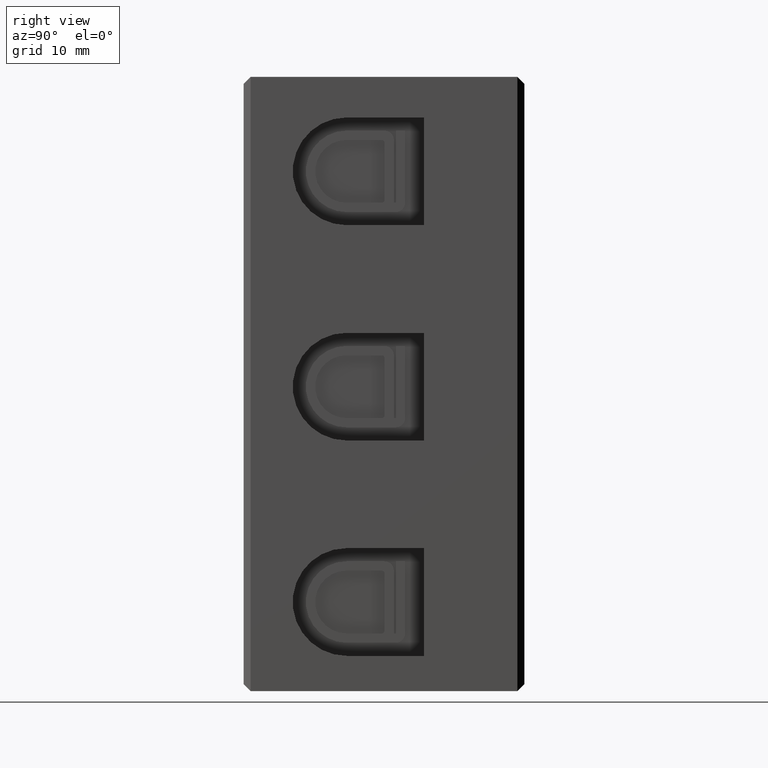
[diagram: clean part render]
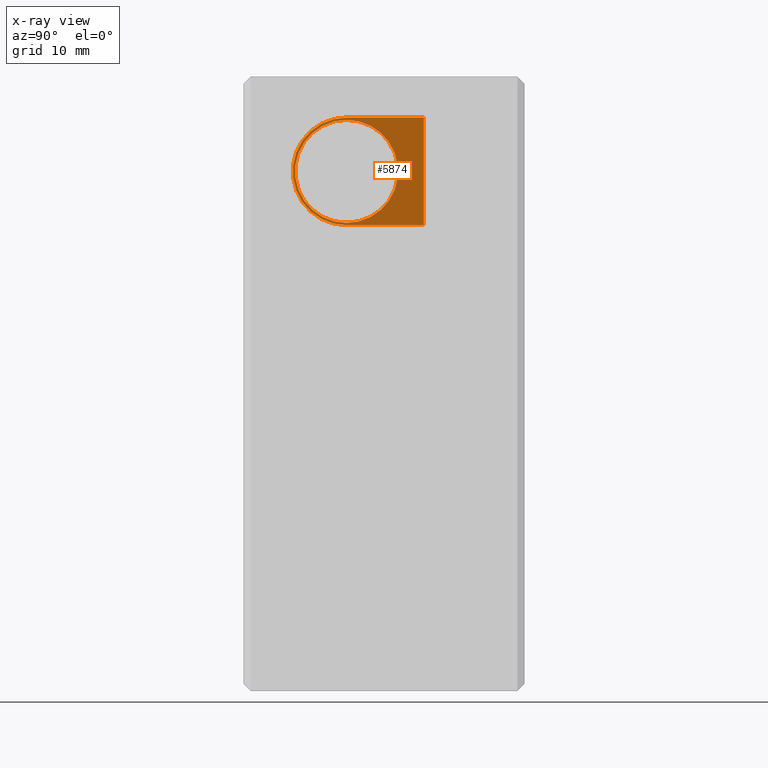
[diagram: x-ray — body ghosted, one internal face saturated and labeled with its STEP entity id]
A machine part, right view, then the same camera in x-ray: the body is ghosted and one INTERNAL B-rep face — a face not visible from any outside direction — is saturated and labeled: STEP entity #5874.
In plain terms, the highlighted planar face has unit normal (-1, 0, 0).
Its self-contained STEP definition (entity closure, byte-faithful):
#177 = DIRECTION ( 'NONE',  ( 1.577021341797097800E-016, 0.0000000000000000000, 1.000000000000000000 ) ) ;
#199 = CARTESIAN_POINT ( 'NONE',  ( 3.000000000000007100, 11.00000000000000000, 55.50000000000000000 ) ) ;
#203 = DIRECTION ( 'NONE',  ( -1.000000000000000000, 0.0000000000000000000, 1.224646799147353200E-016 ) ) ;
#1084 = FACE_BOUND ( 'NONE', #8514, .T. ) ;
#1085 = CARTESIAN_POINT ( 'NONE',  ( 3.000000000000007100, 11.00000000000000000, 55.50000000000000000 ) ) ;
#1091 = DIRECTION ( 'NONE',  ( 1.224646799147353200E-016, 0.0000000000000000000, 1.000000000000000000 ) ) ;
#1108 = FACE_OUTER_BOUND ( 'NONE', #8496, .T. ) ;
#1109 = DIRECTION ( 'NONE',  ( -1.000000000000000000, 0.0000000000000000000, 1.224646799147353200E-016 ) ) ;
#1121 = PLANE ( 'NONE',  #2641 ) ;
#2064 = DIRECTION ( 'NONE',  ( 1.577021341797097800E-016, 0.0000000000000000000, 1.000000000000000000 ) ) ;
#2089 = CARTESIAN_POINT ( 'NONE',  ( 3.000000000000007100, 11.00000000000000000, 55.50000000000000000 ) ) ;
#2107 = DIRECTION ( 'NONE',  ( -1.000000000000000000, 0.0000000000000000000, 1.224646799147353200E-016 ) ) ;
#2641 = AXIS2_PLACEMENT_3D ( 'NONE', #1085, #1109, #1091 ) ;
#2854 = CIRCLE ( 'NONE', #2859, 5.499999999999998200 ) ;
#2859 = AXIS2_PLACEMENT_3D ( 'NONE', #2089, #2107, #2064 ) ;
#3287 = ORIENTED_EDGE ( 'NONE', *, *, #7537, .T. ) ;
#3288 = ORIENTED_EDGE ( 'NONE', *, *, #6073, .T. ) ;
#3310 = ORIENTED_EDGE ( 'NONE', *, *, #7478, .F. ) ;
#3323 = ORIENTED_EDGE ( 'NONE', *, *, #7473, .F. ) ;
#3333 = ORIENTED_EDGE ( 'NONE', *, *, #7452, .F. ) ;
#3366 = ORIENTED_EDGE ( 'NONE', *, *, #7434, .F. ) ;
#4512 = VERTEX_POINT ( 'NONE', #8829 ) ;
#4525 = VERTEX_POINT ( 'NONE', #8863 ) ;
#4529 = VERTEX_POINT ( 'NONE', #8871 ) ;
#4564 = VERTEX_POINT ( 'NONE', #9021 ) ;
#4778 = VERTEX_POINT ( 'NONE', #9481 ) ;
#4812 = VERTEX_POINT ( 'NONE', #9472 ) ;
#5421 = CARTESIAN_POINT ( 'NONE',  ( 3.000000000000007100, 19.24999999999999600, 55.50000000000000000 ) ) ;
#5436 = LINE ( 'NONE', #5421, #8918 ) ;
#5453 = DIRECTION ( 'NONE',  ( -1.224646799147353200E-016, -0.0000000000000000000, -1.000000000000000000 ) ) ;
#5466 = LINE ( 'NONE', #5472, #9027 ) ;
#5472 = CARTESIAN_POINT ( 'NONE',  ( 3.000000000000006200, 11.00000000000000000, 49.75000000000000000 ) ) ;
#5495 = DIRECTION ( 'NONE',  ( -0.0000000000000000000, -1.000000000000000000, 0.0000000000000000000 ) ) ;
#5541 = CARTESIAN_POINT ( 'NONE',  ( 3.000000000000002700, 11.00000000000000000, 55.50000000000000000 ) ) ;
#5542 = DIRECTION ( 'NONE',  ( -1.000000000000000000, 0.0000000000000000000, 1.224646799147353200E-016 ) ) ;
#5544 = DIRECTION ( 'NONE',  ( 0.0000000000000000000, 1.000000000000000000, -0.0000000000000000000 ) ) ;
#5552 = CARTESIAN_POINT ( 'NONE',  ( 3.000000000000008000, 11.00000000000000000, 61.25000000000000000 ) ) ;
#5553 = LINE ( 'NONE', #5552, #9087 ) ;
#5568 = DIRECTION ( 'NONE',  ( 1.508455196501570000E-016, 0.0000000000000000000, 1.000000000000000000 ) ) ;
#5874 = ADVANCED_FACE ( 'NONE', ( #1084, #1108 ), #1121, .F. ) ;
#6073 = EDGE_CURVE ( 'NONE', #4812, #4778, #2854, .T. ) ;
#7434 = EDGE_CURVE ( 'NONE', #4512, #4564, #5436, .T. ) ;
#7452 = EDGE_CURVE ( 'NONE', #4564, #4529, #5466, .T. ) ;
#7473 = EDGE_CURVE ( 'NONE', #4529, #4525, #9082, .T. ) ;
#7478 = EDGE_CURVE ( 'NONE', #4525, #4512, #5553, .T. ) ;
#7537 = EDGE_CURVE ( 'NONE', #4778, #4812, #9285, .T. ) ;
#8496 = EDGE_LOOP ( 'NONE', ( #3333, #3366, #3310, #3323 ) ) ;
#8514 = EDGE_LOOP ( 'NONE', ( #3287, #3288 ) ) ;
#8829 = CARTESIAN_POINT ( 'NONE',  ( 3.000000000000006200, 19.24999999999999600, 61.25000000000000000 ) ) ;
#8863 = CARTESIAN_POINT ( 'NONE',  ( 3.000000000000004000, 11.00000000000000000, 61.25000000000000000 ) ) ;
#8871 = CARTESIAN_POINT ( 'NONE',  ( 3.000000000000003600, 11.00000000000000000, 49.75000000000000000 ) ) ;
#8918 = VECTOR ( 'NONE', #5453, 1000.000000000000000 ) ;
#9021 = CARTESIAN_POINT ( 'NONE',  ( 3.000000000000004900, 19.24999999999999600, 49.74999999999999300 ) ) ;
#9027 = VECTOR ( 'NONE', #5495, 1000.000000000000000 ) ;
#9073 = AXIS2_PLACEMENT_3D ( 'NONE', #5541, #5542, #5568 ) ;
#9082 = CIRCLE ( 'NONE', #9073, 5.750000000000005300 ) ;
#9087 = VECTOR ( 'NONE', #5544, 1000.000000000000000 ) ;
#9253 = AXIS2_PLACEMENT_3D ( 'NONE', #199, #203, #177 ) ;
#9285 = CIRCLE ( 'NONE', #9253, 5.499999999999998200 ) ;
#9472 = CARTESIAN_POINT ( 'NONE',  ( 3.000000000000006200, 11.00000000000000000, 50.00000000000000000 ) ) ;
#9481 = CARTESIAN_POINT ( 'NONE',  ( 3.000000000000008000, 11.00000000000000000, 61.00000000000000000 ) ) ;